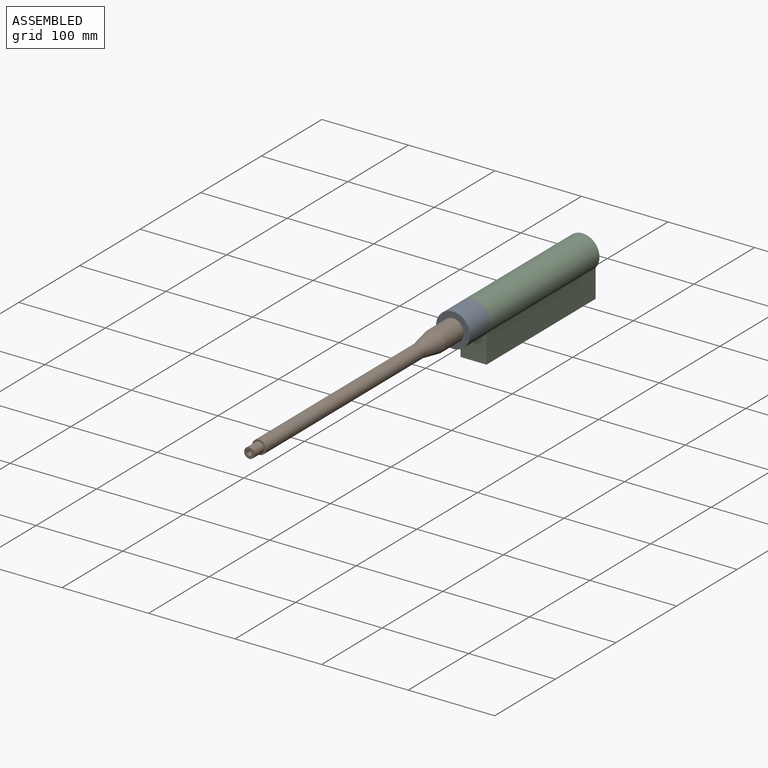
[diagram: assembled view]
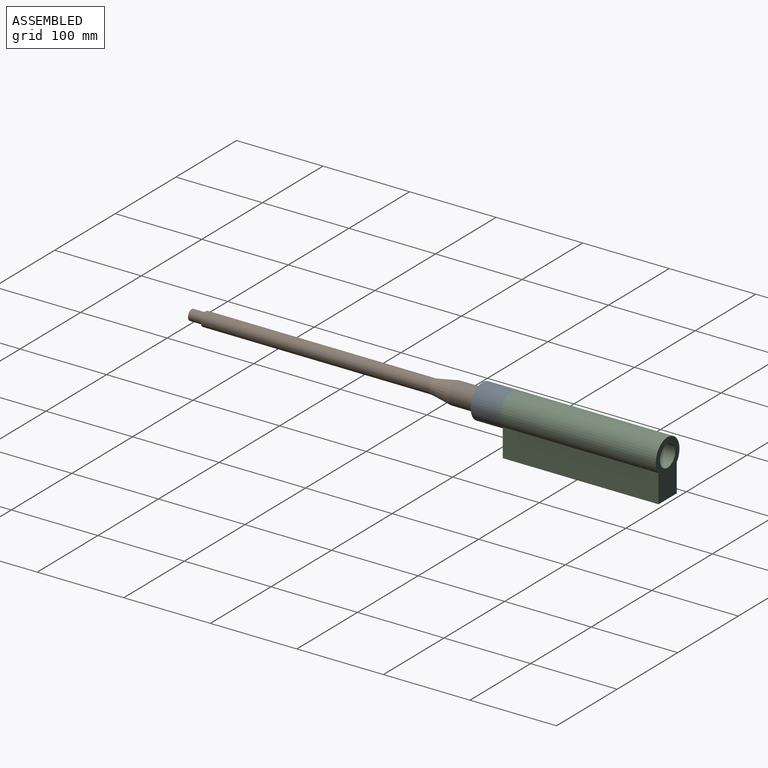
[diagram: assembled view, second angle]
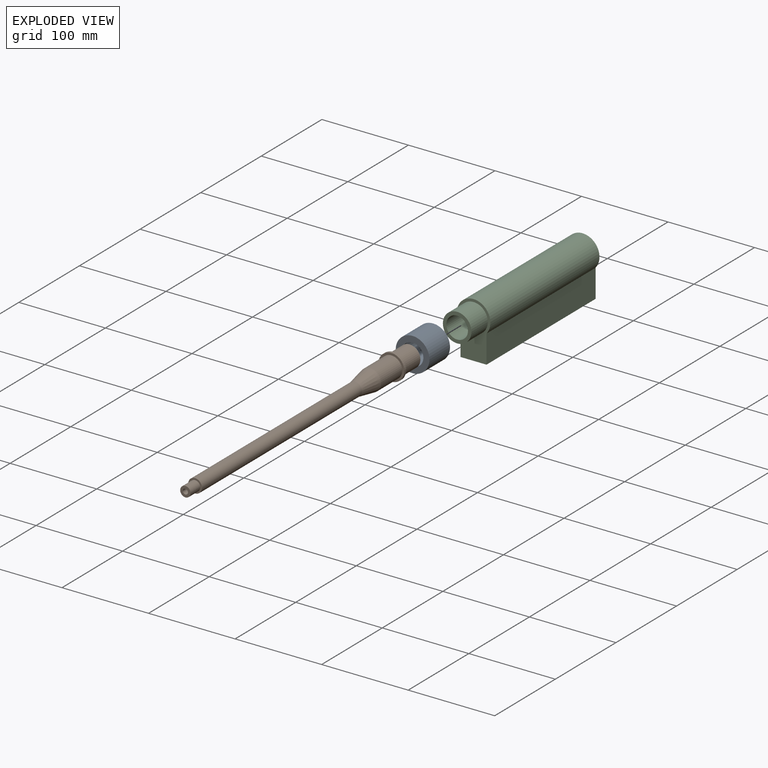
[diagram: exploded view]
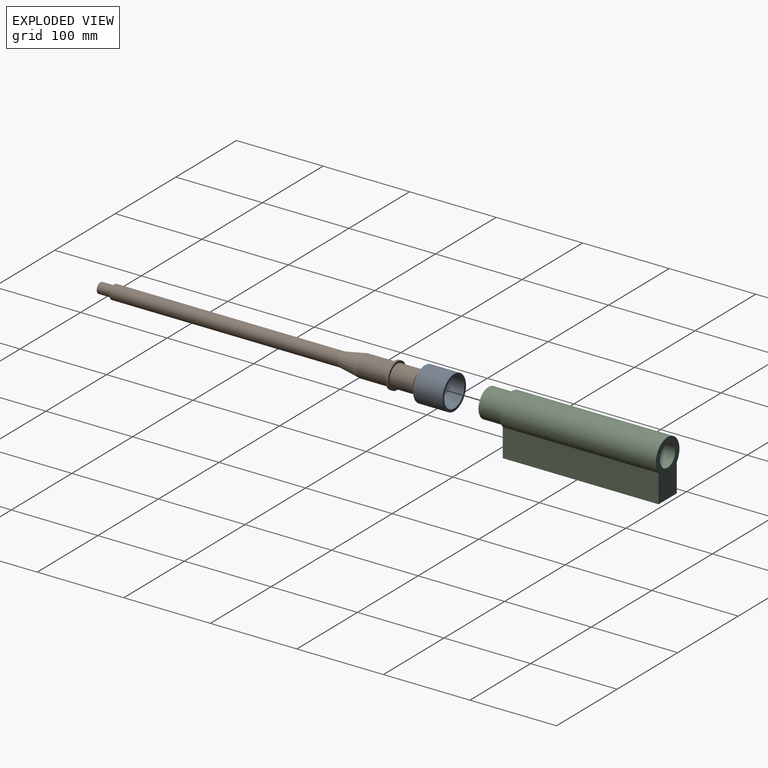
[diagram: exploded view, second angle]
ASSEMBLY  parts=3 mates=2
PART A: 6 faces, bbox 39x34x39 mm
  f0: plane 33x33mm, normal (0,-1,0), area 364.4mm2, adj f1,f4
  f1: cylinder r=12.5mm len=25mm, axis (0,1,0), area 314.2mm2, adj f0,f3
  f2: cylinder r=19.5mm len=39mm, axis (0,1,0), area 4165.8mm2, adj f3,f5
  f3: plane 39x39mm, normal (0,1,0), area 703.7mm2, adj f1,f2
  f4: cylinder r=16.5mm len=33mm, axis (0,1,0), area 3110.2mm2, adj f0,f5
  f5: plane 39x39mm, normal (0,-1,0), area 339.3mm2, adj f2,f4
PART B: 12 faces, bbox 30x370x30 mm
  f0: plane 30x30mm, normal (0,1,0), area 216mm2, adj f1,f11
  f1: cylinder r=15mm len=30mm, axis (0,1,0), area 282.7mm2, adj f0,f2
  f2: plane 30x30mm, normal (0,-1,0), area 216mm2, adj f1,f3
  f3: cylinder r=12.5mm len=35mm, axis (0,1,0), area 2748.9mm2, adj f2,f4
  f4: cone r=8mm half-angle=10.2deg, axis (0,1,0), area 1635.9mm2, adj f3,f5
  f5: cylinder r=8mm len=264mm, axis (0,1,0), area 13270.1mm2, adj f4,f6
  f6: plane 16x16mm, normal (0,-1,0), area 88mm2, adj f5,f7
  f7: cylinder r=6mm len=16mm, axis (0,1,0), area 603.2mm2, adj f6,f8
  f8: plane 12x12mm, normal (0,-1,0), area 84.8mm2, adj f7,f9
  f9: cylinder r=3mm len=370mm, axis (0,1,0), area 6974.3mm2, adj f8,f10
  f10: plane 25x25mm, normal (0,1,0), area 462.6mm2, adj f9,f11
  f11: cylinder r=12.5mm len=27mm, axis (0,1,0), area 2120.6mm2, adj f0,f10
PART C: 9 faces, bbox 39x207x64.5 mm
  f0: cylinder r=19.5mm len=180mm, axis (0,1,0), area 15893mm2, adj f2,f3,f4,f6
  f1: cylinder r=12.5mm len=207mm, axis (0,1,0), area 16257.7mm2, adj f3,f8
  f2: plane 64.5x39mm, normal (0,-1,0), area 1168.7mm2, adj f0,f4,f5,f6,f7
  f3: plane 64.5x39mm, normal (0,1,0), area 1533.1mm2, adj f0,f1,f4,f5,f6
  f4: plane 180x32.54mm, normal (-1,0,0), area 5857.2mm2, adj f0,f2,f3,f5
  f5: plane 180x30mm, normal (0,0,-1), area 5400mm2, adj f2,f3,f4,f6
  f6: plane 180x32.54mm, normal (1,0,0), area 5857.2mm2, adj f0,f2,f3,f5
  f7: cylinder r=16.5mm len=33mm, axis (0,1,0), area 2799.2mm2, adj f2,f8
  f8: plane 33x33mm, normal (0,-1,0), area 364.4mm2, adj f1,f7
PLACE A rot(axis=(1,0,0),180deg) t=(37.95,90.91,1.28)mm
PLACE B t=(37.95,124.91,1.28)mm
PLACE C t=(37.95,304.91,1.28)mm
MATE fastened A.f1 <-> C.f0  axis (0,1,0) through (37.95,124.91,1.28)mm
MATE fastened B.f1 <-> C.f0  axis (0,1,0) through (37.95,97.91,1.28)mm
